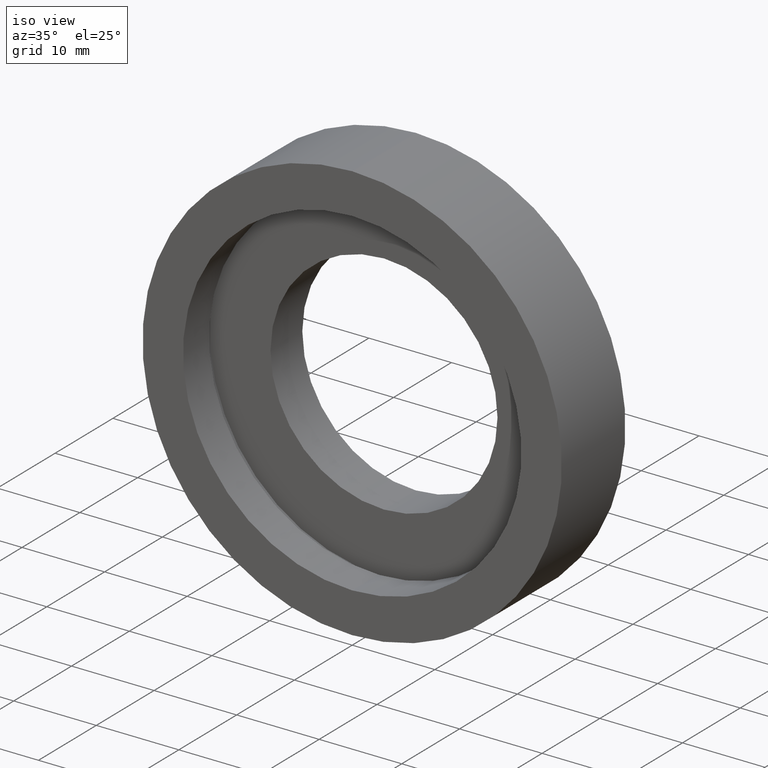
[diagram: clean part render]
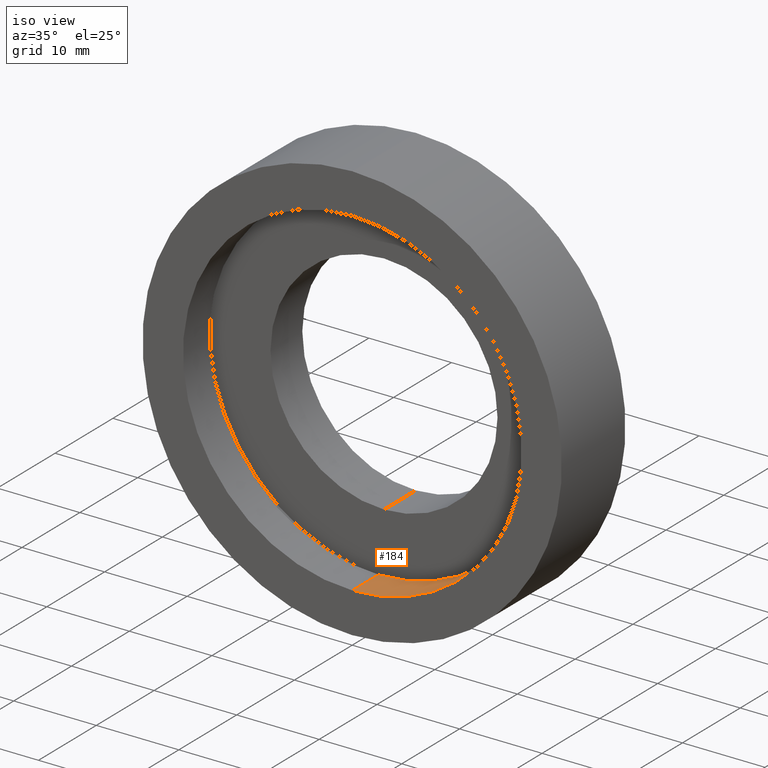
[diagram: same view with one face highlighted and labeled with its STEP entity id]
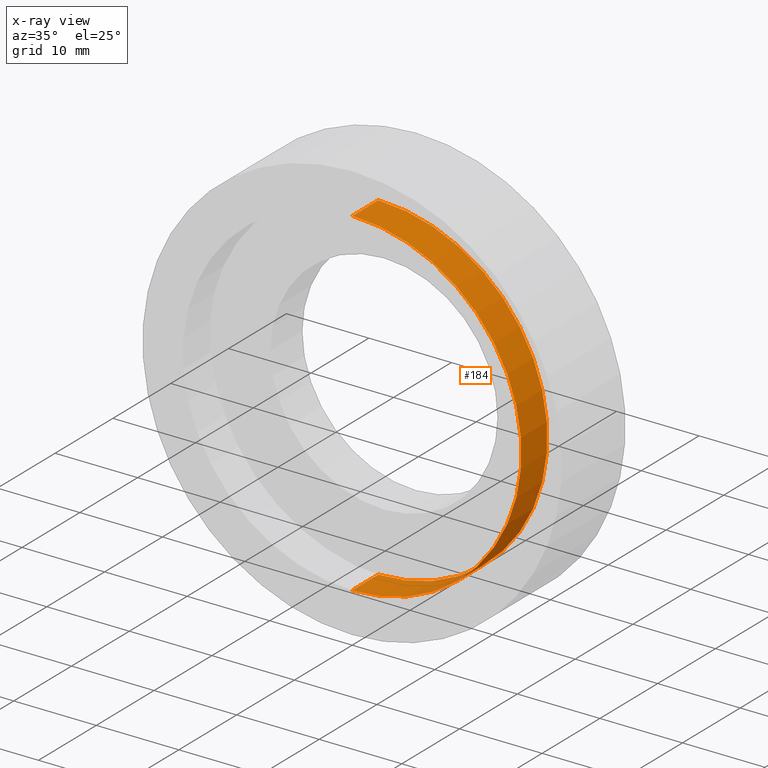
[diagram: x-ray of the same camera — body ghosted, the highlighted face saturated]
A machine part, iso view. The second image highlights one B-rep face of the part: STEP entity #184.
The next image is the same camera in x-ray: the body ghosted, the highlighted face saturated — about 0% of this face is hidden behind the body in this view.
In plain terms, the highlighted cylindrical surface (partial cylindrical patch) has radius 20.5 mm, axis along (-0, 1, -0).
Its self-contained STEP definition (entity closure, byte-faithful):
#4 = ORIENTED_EDGE ( 'NONE', *, *, #19, .F. ) ;
#7 = DIRECTION ( 'NONE',  ( 0.0000000000000000000, 0.0000000000000000000, 1.000000000000000000 ) ) ;
#16 = CYLINDRICAL_SURFACE ( 'NONE', #421, 20.50000000000000700 ) ;
#19 = EDGE_CURVE ( 'NONE', #63, #364, #218, .T. ) ;
#54 = AXIS2_PLACEMENT_3D ( 'NONE', #431, #130, #255 ) ;
#56 = EDGE_CURVE ( 'NONE', #63, #332, #433, .T. ) ;
#63 = VERTEX_POINT ( 'NONE', #351 ) ;
#102 = EDGE_CURVE ( 'NONE', #364, #126, #330, .T. ) ;
#126 = VERTEX_POINT ( 'NONE', #371 ) ;
#130 = DIRECTION ( 'NONE',  ( -0.0000000000000000000, 1.000000000000000000, -0.0000000000000000000 ) ) ;
#166 = DIRECTION ( 'NONE',  ( 0.0000000000000000000, 0.0000000000000000000, 1.000000000000000000 ) ) ;
#173 = ORIENTED_EDGE ( 'NONE', *, *, #56, .T. ) ;
#175 = VECTOR ( 'NONE', #213, 1000.000000000000000 ) ;
#184 = ADVANCED_FACE ( 'NONE', ( #261 ), #16, .F. ) ;
#201 = CARTESIAN_POINT ( 'NONE',  ( 0.0000000000000000000, 0.0000000000000000000, 0.0000000000000000000 ) ) ;
#213 = DIRECTION ( 'NONE',  ( -0.0000000000000000000, 1.000000000000000000, -0.0000000000000000000 ) ) ;
#218 = CIRCLE ( 'NONE', #350, 20.50000000000000700 ) ;
#225 = EDGE_CURVE ( 'NONE', #332, #126, #409, .T. ) ;
#227 = DIRECTION ( 'NONE',  ( -0.0000000000000000000, 1.000000000000000000, -0.0000000000000000000 ) ) ;
#231 = DIRECTION ( 'NONE',  ( -0.0000000000000000000, 1.000000000000000000, -0.0000000000000000000 ) ) ;
#242 = CARTESIAN_POINT ( 'NONE',  ( 2.510525938252074900E-015, 0.0000000000000000000, -20.50000000000000700 ) ) ;
#250 = ORIENTED_EDGE ( 'NONE', *, *, #225, .T. ) ;
#255 = DIRECTION ( 'NONE',  ( 0.0000000000000000000, 0.0000000000000000000, 1.000000000000000000 ) ) ;
#261 = FACE_OUTER_BOUND ( 'NONE', #384, .T. ) ;
#314 = CARTESIAN_POINT ( 'NONE',  ( 0.0000000000000000000, 60.02082041425541100, 20.50000000000000700 ) ) ;
#330 = LINE ( 'NONE', #401, #175 ) ;
#332 = VERTEX_POINT ( 'NONE', #405 ) ;
#342 = VECTOR ( 'NONE', #389, 1000.000000000000000 ) ;
#350 = AXIS2_PLACEMENT_3D ( 'NONE', #201, #231, #7 ) ;
#351 = CARTESIAN_POINT ( 'NONE',  ( 0.0000000000000000000, 0.0000000000000000000, 20.50000000000000700 ) ) ;
#352 = CARTESIAN_POINT ( 'NONE',  ( 0.0000000000000000000, 60.02082041425541100, 0.0000000000000000000 ) ) ;
#364 = VERTEX_POINT ( 'NONE', #242 ) ;
#371 = CARTESIAN_POINT ( 'NONE',  ( 2.510525938252074900E-015, 4.499999999999997300, -20.50000000000000700 ) ) ;
#384 = EDGE_LOOP ( 'NONE', ( #410, #4, #173, #250 ) ) ;
#389 = DIRECTION ( 'NONE',  ( -0.0000000000000000000, 1.000000000000000000, -0.0000000000000000000 ) ) ;
#401 = CARTESIAN_POINT ( 'NONE',  ( 2.510525938252074900E-015, 60.02082041425541100, -20.50000000000000700 ) ) ;
#405 = CARTESIAN_POINT ( 'NONE',  ( 0.0000000000000000000, 4.499999999999997300, 20.50000000000000700 ) ) ;
#409 = CIRCLE ( 'NONE', #54, 20.50000000000000700 ) ;
#410 = ORIENTED_EDGE ( 'NONE', *, *, #102, .F. ) ;
#421 = AXIS2_PLACEMENT_3D ( 'NONE', #352, #227, #166 ) ;
#431 = CARTESIAN_POINT ( 'NONE',  ( 0.0000000000000000000, 4.499999999999997300, 0.0000000000000000000 ) ) ;
#433 = LINE ( 'NONE', #314, #342 ) ;